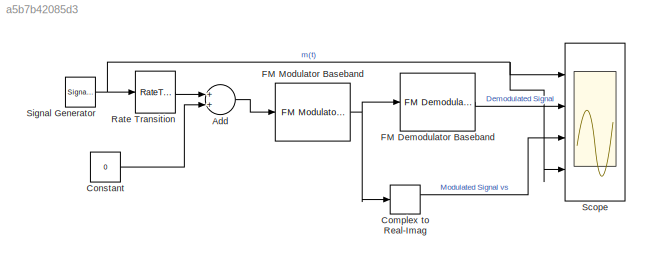
MODEL slx_a5b7b42085d3
KIND model
CONFIG AbsTol = auto
CONFIG EnableMultiTasking = off
CONFIG FixedStep = auto
CONFIG MaxStep = auto
CONFIG MinStep = auto
CONFIG RelTol = 1e-3
CONFIG SampleTimeConstraint = Unconstrained
CONFIG Solver = VariableStepAuto
CONFIG SolverName = VariableStepAuto
CONFIG StartTime = 0.0
CONFIG StopTime = 10.0
BLOCK [Sum] Add 
  InputSameDT = off
  OutDataTypeStr = Inherit: Inherit via internal rule
  Ports = [2, 1]
  SaturateOnIntegerOverflow = off
BLOCK [ComplexToRealImag] Complex to Real-Imag 
  Ports = [1, 2]
BLOCK [Constant] Constant 
  Value = 0
BLOCK [Reference] FM Demodulator Baseband   REF=commanabbnd3/FM
Demodulator
Baseband 
  Ports = [1, 1]
  SourceBlock = commanabbnd3/FM\nDemodulator\nBaseband
  SourceProductBaseCode = CM
  SourceProductName = Communications System Toolbox
  SourceType = FM Demodulator Baseband
BLOCK [Reference] FM Modulator Baseband   REF=commanabbnd3/FM
Modulator
Baseband
  Ports = [1, 1]
  SourceBlock = commanabbnd3/FM\nModulator\nBaseband
  SourceProductBaseCode = CM
  SourceProductName = Communications System Toolbox
  SourceType = FM Modulator Baseband
BLOCK [RateTransition] Rate Transition 
  OutPortSampleTime = 1/100e3
BLOCK [Scope] Scope
  Floating = off
  NumInputPorts = 4
  Ports = [4]
  ScopeSpecificationString = Simulink.scopes.TimeScopeBlockCfg('CurrentConfiguration', extmgr.ConfigurationSet(extmgr.Configuration('Core','General UI',true),extmgr.Configuration('Core','Source UI',true),extmgr.Configuration('Sources','WiredSimulink',true),extmgr.Configuration('Visuals','Time Domain',true,'SerializedDisplays',{struct('MinYLimReal','-1.25','MaxYLimReal','1.25','YLabelReal','Amplitude','MinYLimMag','0.00000','M...<+2746ch>
BLOCK [SignalGenerator] Signal Generator 
  Frequency = 5
  Ports = [0, 1]
  Units = rad/sec
LINE Add :1 -> FM Modulator Baseband :1
LINE Complex to Real-Imag :1 -> Scope:3
LINE Constant :1 -> Add :2
LINE FM Demodulator Baseband :1 -> Scope:2
NET FM Modulator Baseband :1 -> Complex to Real-Imag :1, FM Demodulator Baseband :1
LINE Rate Transition :1 -> Add :1
NET Signal Generator :1 -> Rate Transition :1, Scope:1, Scope:4
note: NET lines group one-source signal fan-out (src -> all destinations, sorted); 1:1 wires keep LINE
